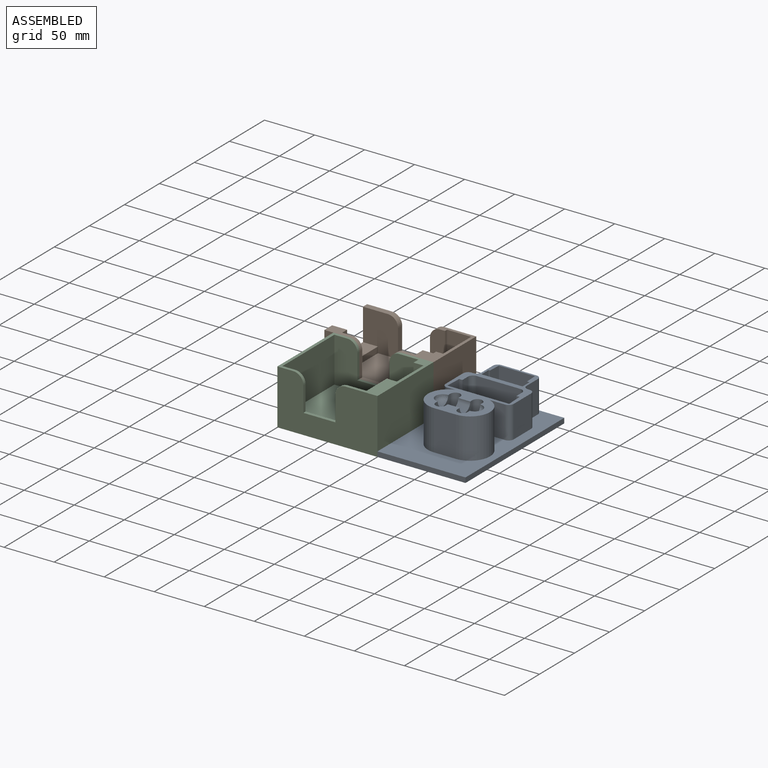
[diagram: assembled view]
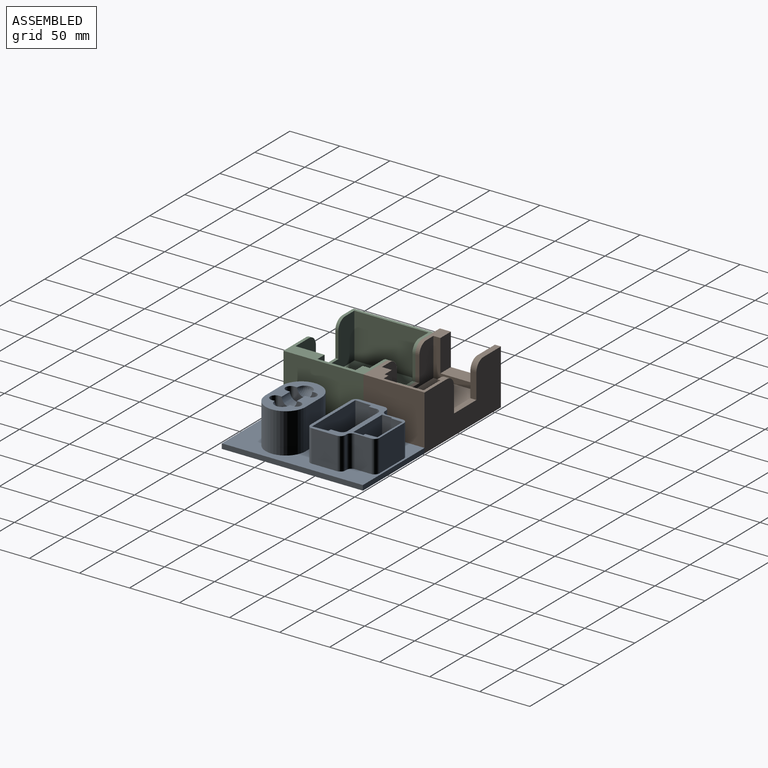
[diagram: assembled view, second angle]
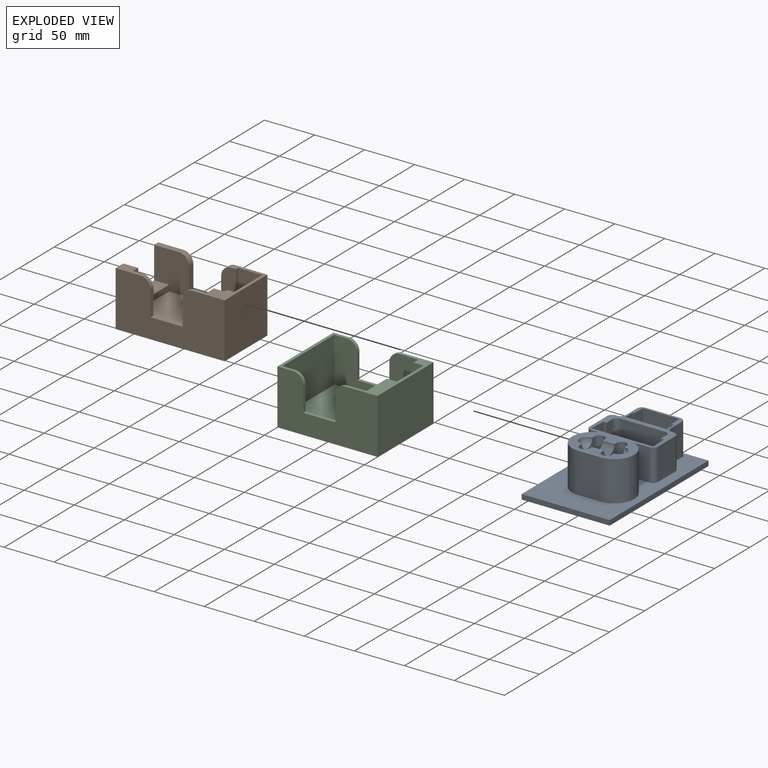
[diagram: exploded view]
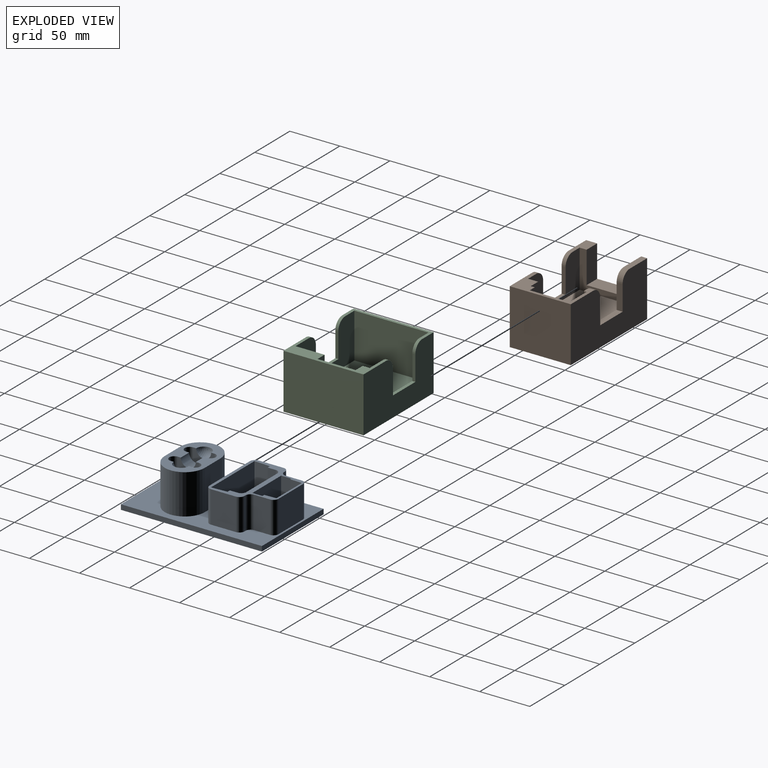
[diagram: exploded view, second angle]
ASSEMBLY  parts=3 mates=2
PART A: 63 faces, bbox 88x45x141 mm
  f0: plane 35x32mm, normal (0,0,-1), area 1120mm2, adj f6,f32,f39,f42
  f1: plane 32x25mm, normal (-1,0,0), area 800mm2, adj f6,f32,f35,f38
  f2: plane 32x1.5mm, normal (0,0,-1), area 48mm2, adj f6,f32,f35,f41
  f3: plane 32x25mm, normal (1,0,0), area 800mm2, adj f6,f32,f36,f37
  f4: plane 32x1.5mm, normal (0,0,-1), area 48mm2, adj f6,f32,f36,f40
  f5: plane 58x32mm, normal (0,0,1), area 1856mm2, adj f6,f32,f37,f38
  f6: plane 68x61mm, normal (0,-1,0), area 1010.1mm2, adj f0,f1,f2,f3,f4,f5,f8,f9
  f7: plane 62x29mm, normal (0,-1,0), area 1670.5mm2, adj f8,f9,f10,f11,f12,f13,f14,f15
  f8: cylinder r=5mm len=32mm, axis (0,-1,0), area 251.3mm2, adj f6,f7,f11,f17
  f9: plane 32x16mm, normal (1,0,0.05), area 512.6mm2, adj f6,f7,f10,f12
  f10: plane 32x3.2mm, normal (0,0,1), area 102.4mm2, adj f6,f7,f9,f11
  f11: plane 32x8mm, normal (1,0,0), area 256mm2, adj f6,f7,f8,f10
  f12: plane 62x32mm, normal (0,0,-1), area 1984mm2, adj f6,f7,f9,f16
  f13: cylinder r=5mm len=32mm, axis (0,1,0), area 251.3mm2, adj f6,f7,f14,f17
  f14: plane 32x8mm, normal (-1,0,0), area 256mm2, adj f6,f7,f13,f15
  f15: plane 32x3.2mm, normal (0,0,1), area 102.4mm2, adj f6,f7,f14,f16
  f16: plane 32x16mm, normal (-1,0,0.05), area 512.6mm2, adj f6,f7,f12,f15
  f17: plane 44x32mm, normal (0,0,1), area 1408mm2, adj f6,f7,f8,f13
  f18: plane 32x16mm, normal (-1,0,0), area 512mm2, adj f6,f32,f39,f41
  f19: plane 32x16mm, normal (1,0,0), area 512mm2, adj f6,f32,f40,f42
  f20: plane 41x1mm, normal (0,-1,0), area 41mm2, adj f21,f25,f26,f27
  f21: plane 41x9mm, normal (0,-0.81,-0.59), area 455.2mm2, adj f20,f22,f24,f25,f27,f30
  f22: plane 37x12mm, normal (0,-1,0), area 438mm2, adj f21,f23,f28,f29
  f23: plane 32x12mm, normal (-1,0,0.04), area 384.3mm2, adj f6,f22,f24,f29
  f24: plane 32x1.5mm, normal (0,0,1), area 48mm2, adj f6,f21,f23,f27
  f25: plane 32x10mm, normal (1,0,0), area 284.2mm2, adj f6,f20,f21,f26,f30
  f26: plane 41x25.5mm, normal (0,0,-1), area 1045.5mm2, adj f6,f20,f25,f27
  f27: plane 32x10mm, normal (-1,0,0), area 284.3mm2, adj f6,f20,f21,f24,f26
  f28: plane 32x12mm, normal (1,0,0.04), area 384.3mm2, adj f6,f22,f29,f30
  f29: plane 36x32mm, normal (0,0,1), area 1152mm2, adj f6,f22,f23,f28
  f30: plane 32x2.5mm, normal (0,0,1), area 80mm2, adj f6,f21,f25,f28
  f31: plane 141x5mm, normal (1,0,0), area 705mm2, adj f32,f34,f43,f62
  f32: plane 141x88mm, normal (0,-1,0), area 6742.8mm2, adj f0,f1,f2,f3,f4,f5,f18,f19
  f33: plane 141x5mm, normal (-1,0,0), area 705mm2, adj f32,f34,f43,f62
  f34: plane 141x88mm, normal (0,1,0), area 12408mm2, adj f31,f33,f43,f62
  f35: cylinder r=5mm len=32mm, axis (0,1,0), area 251.3mm2, adj f1,f2,f6,f32
  f36: cylinder r=5mm len=32mm, axis (0,-1,0), area 251.3mm2, adj f3,f4,f6,f32
  f37: cylinder r=5mm len=32mm, axis (0,1,0), area 251.3mm2, adj f3,f5,f6,f32
  f38: cylinder r=5mm len=32mm, axis (0,-1,0), area 251.3mm2, adj f1,f5,f6,f32
  f39: cylinder r=5mm len=32mm, axis (0,1,0), area 251.3mm2, adj f0,f6,f18,f32
  f40: cylinder r=5mm len=32mm, axis (0,1,0), area 251.3mm2, adj f4,f6,f19,f32
  f41: cylinder r=5mm len=32mm, axis (0,-1,0), area 251.3mm2, adj f2,f6,f18,f32
  f42: cylinder r=5mm len=32mm, axis (0,-1,0), area 251.3mm2, adj f0,f6,f19,f32
  f43: plane 88x5mm, normal (0,0,1), area 440mm2, adj f31,f32,f33,f34
  f44: plane 62x40mm, normal (0,-1,0), area 1202.8mm2, adj f45,f46,f47,f48,f49,f50,f52,f53
  f45: plane 43x21mm, normal (-1,0,0), area 814.6mm2, adj f44,f51,f55,f56,f61
  f46: plane 40x22mm, normal (0,0,-1), area 880mm2, adj f32,f44,f47,f49
  f47: cylinder r=20mm len=40mm, axis (0,1,0), area 2513.3mm2, adj f32,f44,f46,f48
  f48: plane 40x22mm, normal (0,0,1), area 880mm2, adj f32,f44,f47,f49
  f49: cylinder r=20mm len=40mm, axis (0,1,0), area 2513.3mm2, adj f32,f44,f46,f48
  f50: plane 43x21mm, normal (1,0,0), area 814.6mm2, adj f44,f51,f55,f56,f59
  f51: plane 31x10mm, normal (0,-1,0), area 288.5mm2, adj f45,f50,f55,f56
  f52: plane 43x21mm, normal (-1,0,0), area 814.6mm2, adj f44,f54,f57,f58,f60
  f53: plane 43x21mm, normal (1,0,0), area 814.6mm2, adj f44,f54,f57,f58,f61
  f54: plane 31x10mm, normal (0,-1,0), area 288.5mm2, adj f52,f53,f57,f58
  f55: cylinder r=5mm len=43mm, axis (0,1,0), area 675.4mm2, adj f44,f45,f50,f51
  f56: cylinder r=5mm len=43mm, axis (0,1,0), area 675.4mm2, adj f44,f45,f50,f51
  f57: cylinder r=5mm len=43mm, axis (0,1,0), area 675.4mm2, adj f44,f52,f53,f54
  f58: cylinder r=5mm len=43mm, axis (0,1,0), area 675.4mm2, adj f44,f52,f53,f54
  f59: sphere r=7.5mm, area 176.7mm2, adj f44,f50
  f60: sphere r=7.5mm, area 176.7mm2, adj f44,f52
  f61: cylinder r=7.5mm len=15mm, axis (-1,0,0), area 282.7mm2, adj f44,f45,f53
  f62: plane 88x5mm, normal (0,0,-1), area 440mm2, adj f31,f32,f33,f34
PART B: 36 faces, bbox 109x61x55 mm
  f0: plane 25x11mm, normal (0,0,1), area 205mm2, adj f1,f9,f13,f16,f31,f35
  f1: plane 73.5x38mm, normal (0,1,0), area 1630.1mm2, adj f0,f2,f11,f13,f24,f28,f29,f30
  f2: plane 61x32mm, normal (0,0,1), area 604mm2, adj f1,f4,f5,f7,f8,f14,f15,f17
  f3: plane 25x6mm, normal (0,0,1), area 150mm2, adj f9,f17,f20,f33
  f4: plane 43x17mm, normal (0,1,0), area 484mm2, adj f2,f5,f6,f7,f11,f24
  f5: plane 43x4mm, normal (-1,0,0), area 172mm2, adj f2,f4,f6,f8
  f6: plane 17x4mm, normal (0,0,1), area 68mm2, adj f4,f5,f7,f8
  f7: plane 50x44mm, normal (1,0,0), area 464mm2, adj f2,f4,f6,f8,f11,f15,f17,f18
  f8: plane 50x24mm, normal (0,1,0), area 469mm2, adj f2,f5,f6,f7,f14,f19
  f9: plane 61x55mm, normal (-1,0,0), area 1947mm2, adj f0,f3,f10,f16,f17,f20,f23,f35
  f10: plane 109x61mm, normal (0,0,-1), area 6649mm2, adj f9,f20,f21,f35
  f11: plane 73.5x51mm, normal (0,0,1), area 2882mm2, adj f1,f4,f7,f12,f13,f17,f18,f24
  f12: plane 30x5mm, normal (1,0,0), area 150mm2, adj f11,f17,f18,f22
  f13: plane 51x38mm, normal (1,0,0), area 530mm2, adj f0,f1,f11,f16,f17,f23
  f14: plane 50x40mm, normal (-1,0,0), area 2000mm2, adj f2,f8,f15,f19
  f15: plane 50x24mm, normal (0,-1,0), area 1200mm2, adj f2,f7,f14,f19
  f16: plane 32x15mm, normal (0,1,0), area 480mm2, adj f0,f9,f13,f23
  f17: plane 82x43mm, normal (0,-1,0), area 1963.1mm2, adj f2,f3,f7,f9,f11,f12,f13,f22
  f18: plane 20x5mm, normal (0,1,0), area 100mm2, adj f7,f11,f12,f22
  f19: plane 40x24mm, normal (0,0,1), area 960mm2, adj f7,f8,f14,f15
  f20: plane 109x55mm, normal (0,1,0), area 4832.1mm2, adj f2,f3,f9,f10,f21,f25,f26,f27
  f21: plane 61x55mm, normal (1,0,0), area 3355mm2, adj f2,f10,f20,f35
  f22: plane 30x20mm, normal (0,0,1), area 600mm2, adj f7,f12,f17,f18
  f23: plane 44x15mm, normal (0,0,1), area 660mm2, adj f9,f13,f16,f17
  f24: plane 38x10mm, normal (-1,0,0), area 380mm2, adj f1,f2,f4,f11
  f25: plane 25x6mm, normal (1,0,0), area 150mm2, adj f17,f20,f26,f33
  f26: plane 32x6mm, normal (0,0,1), area 192mm2, adj f17,f20,f25,f27
  f27: plane 25x6mm, normal (-1,0,0), area 150mm2, adj f17,f20,f26,f34
  f28: plane 25x4mm, normal (1,0,0), area 100mm2, adj f1,f29,f31,f35
  f29: plane 32x4mm, normal (0,0,1), area 128mm2, adj f1,f28,f30,f35
  f30: plane 25x4mm, normal (-1,0,0), area 100mm2, adj f1,f29,f32,f35
  f31: cylinder r=10mm len=10mm, axis (0,1,0), area 62.8mm2, adj f0,f1,f28,f35
  f32: cylinder r=10mm len=10mm, axis (0,-1,0), area 62.8mm2, adj f1,f2,f30,f35
  f33: cylinder r=10mm len=10mm, axis (0,1,0), area 94.2mm2, adj f3,f17,f20,f25
  f34: cylinder r=10mm len=10mm, axis (0,-1,0), area 94.2mm2, adj f2,f17,f20,f27
  f35: plane 109x55mm, normal (0,-1,0), area 4832.1mm2, adj f0,f2,f9,f10,f21,f28,f29,f30
PART C: 30 faces, bbox 100x80x55 mm
  f0: plane 80x16mm, normal (0,0,1), area 318mm2, adj f1,f5,f6,f12,f15,f16,f27,f29
  f1: plane 100x55mm, normal (0,1,0), area 4337.1mm2, adj f0,f8,f14,f16,f17,f20,f21,f22
  f2: plane 38x12mm, normal (0,0,1), area 456mm2, adj f4,f9,f11,f19
  f3: plane 49x7mm, normal (-1,0,0), area 343mm2, adj f5,f8,f10,f19
  f4: plane 52x38mm, normal (-1,0,0), area 1976mm2, adj f2,f8,f11,f19
  f5: plane 84x49mm, normal (0,-1,0), area 2773.1mm2, adj f0,f3,f7,f8,f10,f12,f13,f20
  f6: plane 84x45mm, normal (0,1,0), area 2617.1mm2, adj f0,f7,f8,f12,f18,f23,f24,f25
  f7: plane 84x74mm, normal (0,0,1), area 4461mm2, adj f5,f6,f11,f12,f13,f18
  f8: plane 80x32mm, normal (0,0,1), area 774mm2, adj f1,f3,f4,f5,f6,f11,f14,f15
  f9: plane 38x3mm, normal (1,0,0), area 114mm2, adj f2,f10,f11,f19
  f10: plane 45x39mm, normal (0,0,1), area 1679mm2, adj f3,f5,f9,f11,f13,f19
  f11: plane 52x49mm, normal (0,1,0), area 682mm2, adj f2,f4,f7,f8,f9,f10,f13,f18
  f12: plane 74x45mm, normal (1,0,0), area 3330mm2, adj f0,f5,f6,f7
  f13: plane 45x4mm, normal (1,0,0), area 180mm2, adj f5,f7,f10,f11
  f14: plane 80x55mm, normal (1,0,0), area 4400mm2, adj f1,f8,f15,f17
  f15: plane 100x55mm, normal (0,-1,0), area 4337.1mm2, adj f0,f8,f14,f16,f17,f23,f24,f25
  f16: plane 80x55mm, normal (-1,0,0), area 4400mm2, adj f0,f1,f15,f17
  f17: plane 100x80mm, normal (0,0,-1), area 8000mm2, adj f1,f14,f15,f16
  f18: plane 45x29mm, normal (-1,0,0), area 1305mm2, adj f6,f7,f8,f11
  f19: plane 52x12mm, normal (0,-1,0), area 526mm2, adj f2,f3,f4,f8,f9,f10
  f20: plane 32x3mm, normal (0,0,1), area 96mm2, adj f1,f5,f21,f22
  f21: plane 25x3mm, normal (1,0,0), area 75mm2, adj f1,f5,f20,f27
  f22: plane 25x3mm, normal (-1,0,0), area 75mm2, adj f1,f5,f20,f26
  f23: plane 25x3mm, normal (-1,0,0), area 75mm2, adj f6,f15,f24,f28
  f24: plane 32x3mm, normal (0,0,1), area 96mm2, adj f6,f15,f23,f25
  f25: plane 25x3mm, normal (1,0,0), area 75mm2, adj f6,f15,f24,f29
  f26: cylinder r=10mm len=10mm, axis (0,-1,0), area 47.1mm2, adj f1,f5,f8,f22
  f27: cylinder r=10mm len=10mm, axis (0,-1,0), area 47.1mm2, adj f0,f1,f5,f21
  f28: cylinder r=10mm len=10mm, axis (0,-1,0), area 47.1mm2, adj f6,f8,f15,f23
  f29: cylinder r=10mm len=10mm, axis (0,-1,0), area 47.1mm2, adj f0,f6,f15,f25
PLACE A rot(axis=(0,-0.71,0.71),180deg) t=(142.59,-9.98,-71.68)mm
PLACE B rot(axis=(0.05,-0.02,-1),0deg) t=(6.09,23.02,-66.68)mm
PLACE C rot(axis=(0.08,0.18,-0.98),0deg) t=(4.59,-47.98,-73.68)mm
MATE fastened B.f21 <-> A.f31  axis (1,0,0) through (54.59,53.02,-73.68)mm
MATE fastened C.f14 <-> A.f31  axis (1,0,0) through (54.59,-87.98,-73.68)mm
